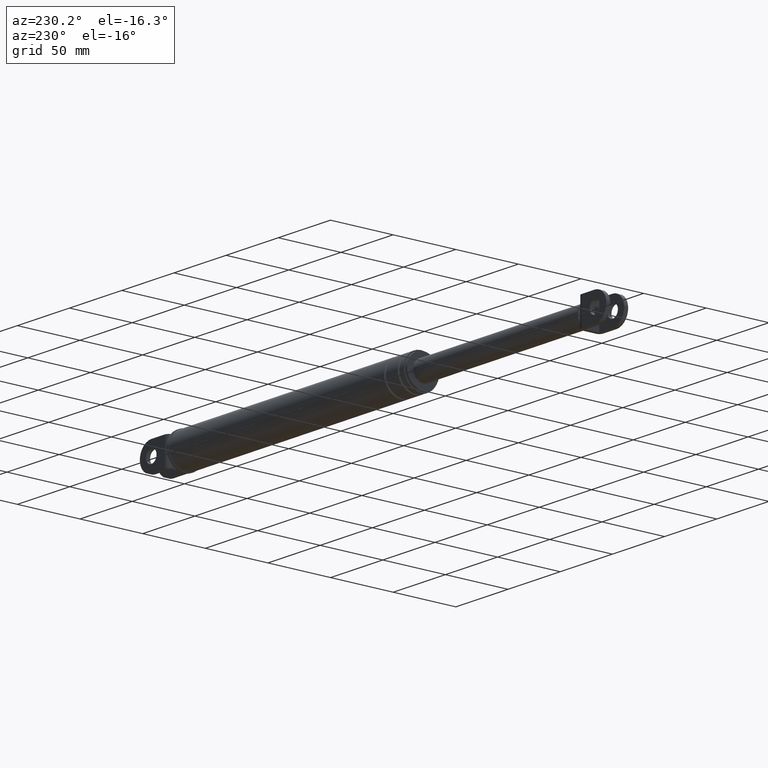
[diagram: clean part render]
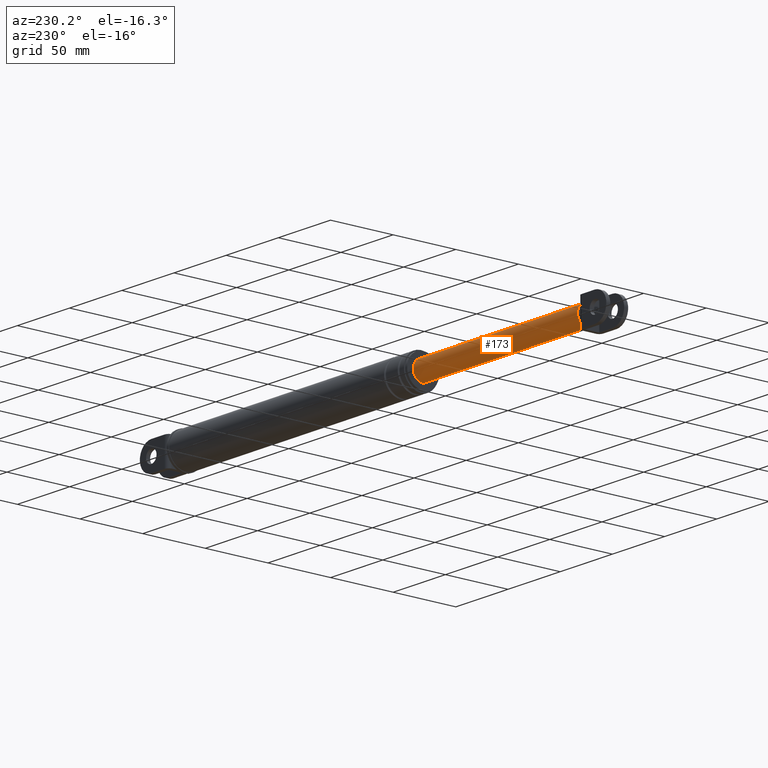
[diagram: same view with one face highlighted and labeled with its STEP entity id]
A machine part, auxiliary view. The second image highlights one B-rep face of the part: STEP entity #173.
In plain terms, the highlighted cylindrical surface (edge-blend (fillet) strip) has radius 8 mm, axis along (1, 0, 0).
Its self-contained STEP definition (entity closure, byte-faithful):
#173=ADVANCED_FACE('',(#803),#802,.T.);
#802=CYLINDRICAL_SURFACE('',#1441,8.00000000007E+000);
#803=FACE_OUTER_BOUND('',#1442,.T.);
#1438=CARTESIAN_POINT('',(0.00000000000E+000,0.00000000000E+000,1.84606082580E+002));
#1439=DIRECTION('',(1.00000000000E+000,-0.00000000000E+000,-0.00000000000E+000));
#1440=DIRECTION('',(-0.00000000000E+000,-0.00000000000E+000,-1.00000000000E+000));
#1441=AXIS2_PLACEMENT_3D('',#1438,#1439,#1440);
#1442=EDGE_LOOP('',(#1816,#1817,#1818,#1819));
#1816=ORIENTED_EDGE('',*,*,#2001,.T.);
#1817=ORIENTED_EDGE('',*,*,#2012,.F.);
#1818=ORIENTED_EDGE('',*,*,#2002,.F.);
#1819=ORIENTED_EDGE('',*,*,#2013,.T.);
#2001=EDGE_CURVE('',#2983,#2982,#2990,.T.);
#2002=EDGE_CURVE('',#2996,#2997,#2998,.T.);
#2012=EDGE_CURVE('',#2997,#2982,#3062,.T.);
#2013=EDGE_CURVE('',#2996,#2983,#3068,.T.);
#2982=VERTEX_POINT('',#3757);
#2983=VERTEX_POINT('',#3758);
#2990=CIRCLE('',#3766,8.00000000007E+000);
#2996=VERTEX_POINT('',#3767);
#2997=VERTEX_POINT('',#3768);
#2998=CIRCLE('',#3772,8.00000000023E+000);
#3062=(BOUNDED_CURVE() B_SPLINE_CURVE(1,(#3808,#3809),.UNSPECIFIED.,.F.,.F.) B_SPLINE_CURVE_WITH_KNOTS((2,2),(5.63380280508E-002,9.43661971905E-001),.UNSPECIFIED.) CURVE() GEOMETRIC_REPRESENTATION_ITEM() RATIONAL_B_SPLINE_CURVE((1.00000000000E+000,1.00000000000E+000)) REPRESENTATION_ITEM('') );
#3068=(BOUNDED_CURVE() B_SPLINE_CURVE(1,(#3810,#3811),.UNSPECIFIED.,.F.,.F.) B_SPLINE_CURVE_WITH_KNOTS((2,2),(5.63380281690E-002,9.43661971831E-001),.UNSPECIFIED.) CURVE() GEOMETRIC_REPRESENTATION_ITEM() RATIONAL_B_SPLINE_CURVE((7.50000000000E-001,7.50000000000E-001)) REPRESENTATION_ITEM('') );
#3757=CARTESIAN_POINT('',(1.71295255021E+002,8.88178419700E-016,1.76606082580E+002));
#3758=CARTESIAN_POINT('',(1.71295255021E+002,0.00000000000E+000,1.92606082580E+002));
#3763=CARTESIAN_POINT('',(1.71295255021E+002,0.00000000000E+000,1.84606082580E+002));
#3764=DIRECTION('',(-1.00000000000E+000,0.00000000000E+000,0.00000000000E+000));
#3765=DIRECTION('',(0.00000000000E+000,-1.22460635382E-016,1.00000000000E+000));
#3766=AXIS2_PLACEMENT_3D('',#3763,#3764,#3765);
#3767=CARTESIAN_POINT('',(1.37952550211E+001,0.00000000000E+000,1.92606082580E+002));
#3768=CARTESIAN_POINT('',(1.37952550211E+001,8.88178419700E-016,1.76606082580E+002));
#3769=CARTESIAN_POINT('',(1.37952550211E+001,0.00000000000E+000,1.84606082580E+002));
#3770=DIRECTION('',(-1.00000000000E+000,0.00000000000E+000,0.00000000000E+000));
#3771=DIRECTION('',(0.00000000000E+000,-1.22460635382E-016,1.00000000000E+000));
#3772=AXIS2_PLACEMENT_3D('',#3769,#3770,#3771);
#3808=CARTESIAN_POINT('',(1.37952550001E+001,0.00000000000E+000,1.76606082580E+002));
#3809=CARTESIAN_POINT('',(1.71295255034E+002,0.00000000000E+000,1.76606082580E+002));
#3810=CARTESIAN_POINT('',(1.37952550211E+001,-2.96059473233E-016,1.92606082580E+002));
#3811=CARTESIAN_POINT('',(1.71295255021E+002,-2.96059473233E-016,1.92606082580E+002));